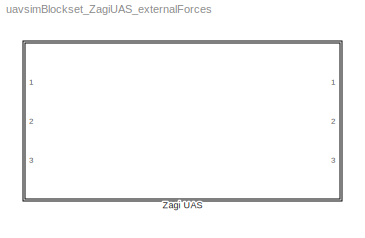
MODEL uavsimBlockset_ZagiUAS_externalForces
KIND library
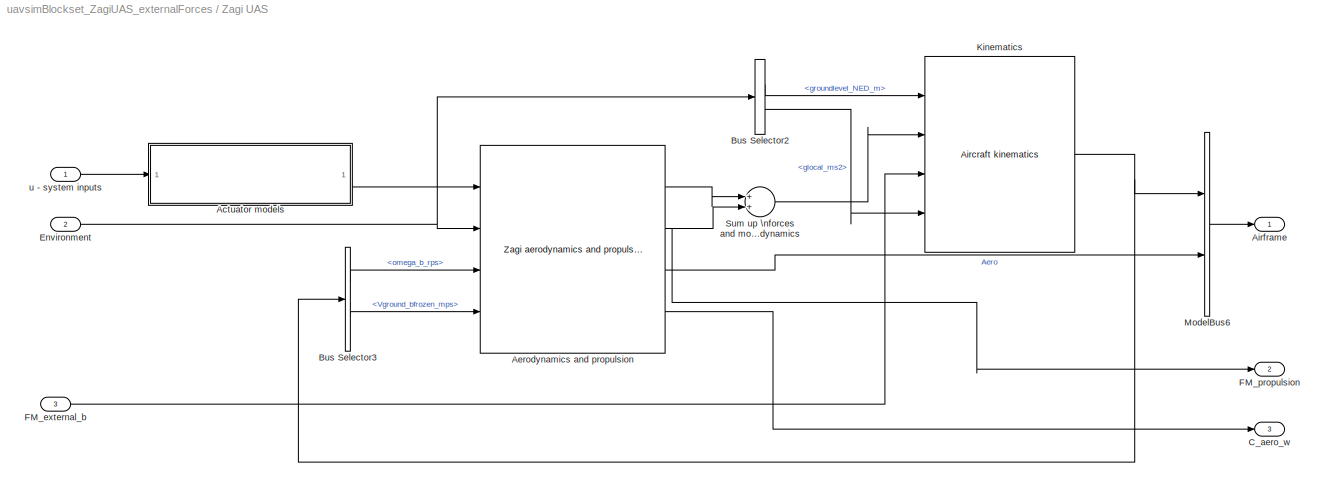
BLOCK [SubSystem] Zagi UAS
  FunctionWithSeparateData = off
  MaskHideContents = off
  MinAlgLoopOccurrences = off
  Opaque = off
  Ports = [3, 3]
  PropExecContextOutsideSubsystem = off
  RTWSystemCode = Auto
  RequestExecContextInheritance = off
  SID = 3696
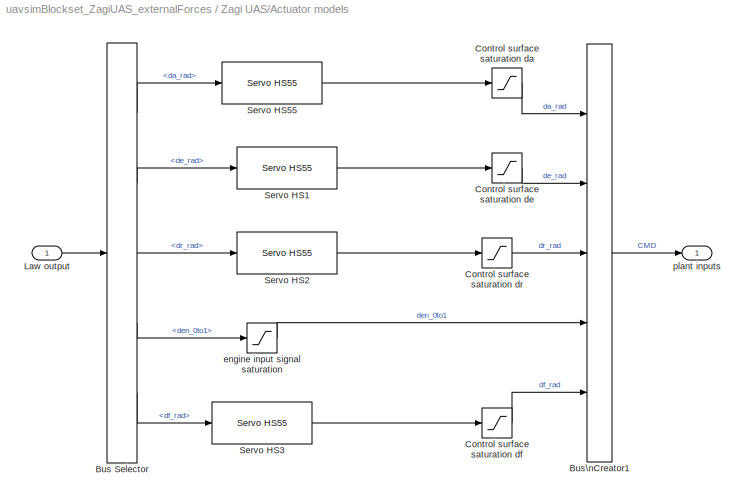
BLOCK [SubSystem] Zagi UAS/Actuator models
  FunctionWithSeparateData = off
  MaskHideContents = off
  MinAlgLoopOccurrences = off
  Opaque = off
  Ports = [1, 1]
  PropExecContextOutsideSubsystem = off
  RTWSystemCode = Auto
  RequestExecContextInheritance = off
  SID = 3841
BLOCK [BusSelector] Zagi UAS/Actuator models/Bus Selector
  OutputSignals = da_rad,de_rad,dr_rad,den_0to1,df_rad
  Ports = [1, 5]
  SID = 3844
BLOCK [BusCreator] Zagi UAS/Actuator models/Bus\nCreator1
  DisplayOption = bar
  Inputs = 5
  NonVirtualBus = on
  OutDataTypeStr = Bus: CMD
  Ports = [5, 1]
  SID = 3843
BLOCK [Saturate] Zagi UAS/Actuator models/Control surface saturation da
  InputPortMap = u0
  LowerLimit = deg2rad(-45)
  Ports = [1, 1]
  SID = 3845
  UpperLimit = deg2rad(45)
BLOCK [Saturate] Zagi UAS/Actuator models/Control surface saturation de
  InputPortMap = u0
  LowerLimit = deg2rad(-45)
  Ports = [1, 1]
  SID = 3846
  UpperLimit = deg2rad(45)
BLOCK [Saturate] Zagi UAS/Actuator models/Control surface saturation df
  InputPortMap = u0
  LowerLimit = deg2rad(-45)
  Ports = [1, 1]
  SID = 4269
  UpperLimit = deg2rad(45)
BLOCK [Saturate] Zagi UAS/Actuator models/Control surface saturation dr
  InputPortMap = u0
  LowerLimit = deg2rad(-45)
  Ports = [1, 1]
  SID = 3847
  UpperLimit = deg2rad(45)
BLOCK [Inport] Zagi UAS/Actuator models/Law output
  IconDisplay = Port number
  OutDataTypeStr = Bus: CMD
  SID = 3842
BLOCK [Reference] Zagi UAS/Actuator models/Servo HS1  REF=uavsimBlockset_ServoHS55/Servo HS55
  Ports = [1, 1]
  SID = 3848
  SourceBlock = uavsimBlockset_ServoHS55/Servo HS55
  SourceType = SubSystem
BLOCK [Reference] Zagi UAS/Actuator models/Servo HS2  REF=uavsimBlockset_ServoHS55/Servo HS55
  Ports = [1, 1]
  SID = 3849
  SourceBlock = uavsimBlockset_ServoHS55/Servo HS55
  SourceType = SubSystem
BLOCK [Reference] Zagi UAS/Actuator models/Servo HS3  REF=uavsimBlockset_ServoHS55/Servo HS55
  Ports = [1, 1]
  SID = 4268
  SourceBlock = uavsimBlockset_ServoHS55/Servo HS55
  SourceType = SubSystem
BLOCK [Reference] Zagi UAS/Actuator models/Servo HS55  REF=uavsimBlockset_ServoHS55/Servo HS55
  Ports = [1, 1]
  SID = 3850
  SourceBlock = uavsimBlockset_ServoHS55/Servo HS55
  SourceType = SubSystem
BLOCK [Saturate] Zagi UAS/Actuator models/engine input signal saturation
  InputPortMap = u0
  LowerLimit = 0
  Ports = [1, 1]
  SID = 3851
  UpperLimit = 1
BLOCK [Outport] Zagi UAS/Actuator models/plant inputs
  IconDisplay = Port number
  OutDataTypeStr = Bus: CMD
  SID = 3852
BLOCK [Reference] Zagi UAS/Aerodynamics and propulsion  REF=uavsimBlockset_Zagi_Aerandpropulsion/Zagi aerodynamics and propulsion
  FunctionWithSeparateData = off
  GeneratePreprocessorConditionals = off
  Ports = [4, 4]
  SID = 3824
  ShowPortLabels = FromPortIcon
  SourceBlock = uavsimBlockset_Zagi_Aerandpropulsion/Zagi aerodynamics and propulsion
  SystemSampleTime = -1
BLOCK [Outport] Zagi UAS/Airframe
  IconDisplay = Port number
  OutDataTypeStr = Bus: Airframe
  SID = 3835
BLOCK [BusSelector] Zagi UAS/Bus Selector2
  OutputSignals = groundlevel_NED_m,glocal_ms2
  Ports = [1, 2]
  SID = 3828
BLOCK [BusSelector] Zagi UAS/Bus Selector3
  OutputSignals = RotationalVelocity.omega_b_rps,Velocity.Vground_bfrozen_mps
  Ports = [1, 2]
  SID = 3829
BLOCK [Outport] Zagi UAS/C_aero_w
  IconDisplay = Port number
  Port = 3
  SID = 4430
BLOCK [Inport] Zagi UAS/Environment
  IconDisplay = Port number
  OutDataTypeStr = Bus: Environment
  Port = 2
  SID = 4016
BLOCK [Inport] Zagi UAS/FM_external_b
  IconDisplay = Port number
  Port = 3
  SID = 4431
BLOCK [Outport] Zagi UAS/FM_propulsion
  IconDisplay = Port number
  Port = 2
  SID = 4429
BLOCK [Reference] Zagi UAS/Kinematics  REF=uavsimblockset_SixDOFKinematics/Aircraft kinematics
  Ports = [4, 1]
  SID = 3840
  SourceBlock = uavsimblockset_SixDOFKinematics/Aircraft kinematics
  mask_P0_ECEF_lla = mask_zagi_p0_ECEF_lla
  mask_inertia = uavsim.zagi.inertiaTensor
  mask_mass = uavsim.zagi.mass
  mask_omega0 = mask_zagi_pqr0
  mask_phithetapsi0 = mask_zagi_phithetapsi0
  mask_uvw0 = mask_zagi_uvw0
BLOCK [BusCreator] Zagi UAS/ModelBus6
  DisplayOption = bar
  Inputs = 2
  NonVirtualBus = on
  OutDataTypeStr = Bus: Airframe
  Ports = [2, 1]
  SID = 3833
BLOCK [Sum] Zagi UAS/Sum up \nforces and moments of engine and\naircraft aerodynamics
  InputSameDT = off
  OutDataTypeStr = Inherit: Inherit via internal rule
  Ports = [2, 1]
  SID = 4428
  SaturateOnIntegerOverflow = off
BLOCK [Inport] Zagi UAS/u - system inputs
  IconDisplay = Port number
  OutDataTypeStr = Bus: CMD
  SID = 3822
LINE Zagi UAS/Actuator models/Bus Selector:1 -> Zagi UAS/Actuator models/Servo HS55:1
LINE Zagi UAS/Actuator models/Bus Selector:2 -> Zagi UAS/Actuator models/Servo HS1:1
LINE Zagi UAS/Actuator models/Bus Selector:3 -> Zagi UAS/Actuator models/Servo HS2:1
LINE Zagi UAS/Actuator models/Bus Selector:4 -> Zagi UAS/Actuator models/engine input signal saturation:1
LINE Zagi UAS/Actuator models/Bus Selector:5 -> Zagi UAS/Actuator models/Servo HS3:1
LINE Zagi UAS/Actuator models/Bus\nCreator1:1 -> Zagi UAS/Actuator models/plant inputs:1
LINE Zagi UAS/Actuator models/Control surface saturation da:1 -> Zagi UAS/Actuator models/Bus\nCreator1:1
LINE Zagi UAS/Actuator models/Control surface saturation de:1 -> Zagi UAS/Actuator models/Bus\nCreator1:2
LINE Zagi UAS/Actuator models/Control surface saturation df:1 -> Zagi UAS/Actuator models/Bus\nCreator1:5
LINE Zagi UAS/Actuator models/Control surface saturation dr:1 -> Zagi UAS/Actuator models/Bus\nCreator1:3
LINE Zagi UAS/Actuator models/Law output:1 -> Zagi UAS/Actuator models/Bus Selector:1
LINE Zagi UAS/Actuator models/Servo HS1:1 -> Zagi UAS/Actuator models/Control surface saturation de:1
LINE Zagi UAS/Actuator models/Servo HS2:1 -> Zagi UAS/Actuator models/Control surface saturation dr:1
LINE Zagi UAS/Actuator models/Servo HS3:1 -> Zagi UAS/Actuator models/Control surface saturation df:1
LINE Zagi UAS/Actuator models/Servo HS55:1 -> Zagi UAS/Actuator models/Control surface saturation da:1
LINE Zagi UAS/Actuator models/engine input signal saturation:1 -> Zagi UAS/Actuator models/Bus\nCreator1:4
LINE Zagi UAS/Actuator models:1 -> Zagi UAS/Aerodynamics and propulsion:1
LINE Zagi UAS/Aerodynamics and propulsion:1 -> Zagi UAS/Sum up \nforces and moments of engine and\naircraft aerodynamics:1
NET Zagi UAS/Aerodynamics and propulsion:2 -> Zagi UAS/FM_propulsion:1, Zagi UAS/Sum up \nforces and moments of engine and\naircraft aerodynamics:2
LINE Zagi UAS/Aerodynamics and propulsion:3 -> Zagi UAS/ModelBus6:2
LINE Zagi UAS/Aerodynamics and propulsion:4 -> Zagi UAS/C_aero_w:1
LINE Zagi UAS/Bus Selector2:1 -> Zagi UAS/Kinematics:1
LINE Zagi UAS/Bus Selector2:2 -> Zagi UAS/Kinematics:4
LINE Zagi UAS/Bus Selector3:1 -> Zagi UAS/Aerodynamics and propulsion:3
LINE Zagi UAS/Bus Selector3:2 -> Zagi UAS/Aerodynamics and propulsion:4
NET Zagi UAS/Environment:1 -> Zagi UAS/Aerodynamics and propulsion:2, Zagi UAS/Bus Selector2:1
LINE Zagi UAS/FM_external_b:1 -> Zagi UAS/Kinematics:3
NET Zagi UAS/Kinematics:1 -> Zagi UAS/Bus Selector3:1, Zagi UAS/ModelBus6:1
LINE Zagi UAS/ModelBus6:1 -> Zagi UAS/Airframe:1
LINE Zagi UAS/Sum up \nforces and moments of engine and\naircraft aerodynamics:1 -> Zagi UAS/Kinematics:2
LINE Zagi UAS/u - system inputs:1 -> Zagi UAS/Actuator models:1
note: NET lines group one-source signal fan-out (src -> all destinations, sorted); 1:1 wires keep LINE
